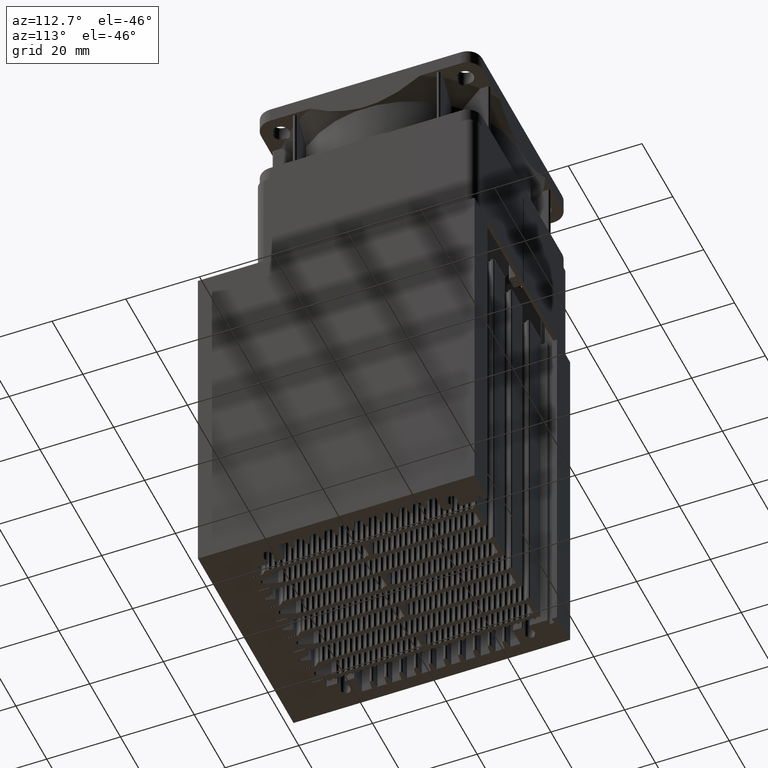
[diagram: clean part render]
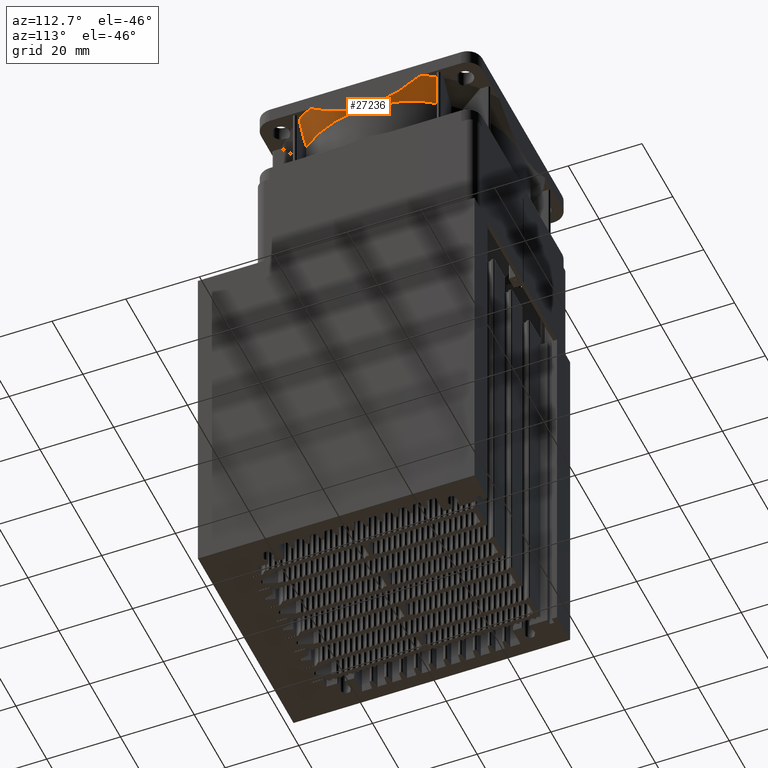
[diagram: same view with one face highlighted and labeled with its STEP entity id]
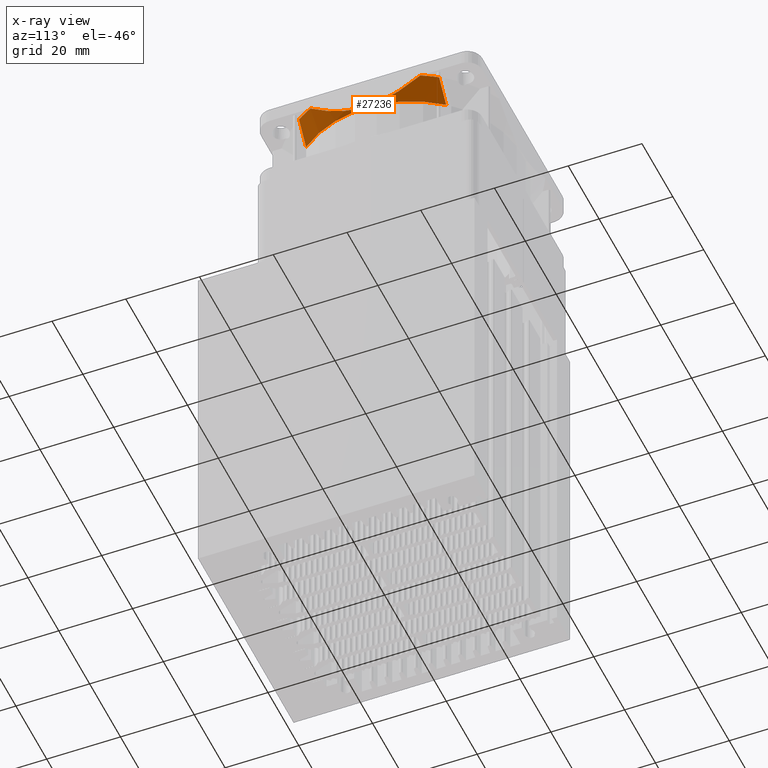
[diagram: x-ray of the same camera — body ghosted, the highlighted face saturated]
A machine part, auxiliary view. The second image highlights one B-rep face of the part: STEP entity #27236.
The next image is the same camera in x-ray: the body ghosted, the highlighted face saturated — about 0% of this face is hidden behind the body in this view.
In plain terms, the highlighted conical surface has half-angle 33.247 deg.
Its self-contained STEP definition (entity closure, byte-faithful):
#46 = AXIS2_PLACEMENT_3D ( 'NONE', #31168, #6347, #18747 ) ;
#404 = CARTESIAN_POINT ( 'NONE',  ( -8.564800977069118915, -29.99989662785769440, 7.512918380959003883 ) ) ;
#870 = CARTESIAN_POINT ( 'NONE',  ( -4.918417837740277854, -29.99989745493872562, 8.730323673533490592 ) ) ;
#1337 = CARTESIAN_POINT ( 'NONE',  ( 9.204814258741539135, -29.99988324425166297, 7.235697295262208506 ) ) ;
#1652 = CARTESIAN_POINT ( 'NONE',  ( 1.153317715235723906, -29.99994358184851251, 9.313601479651454795 ) ) ;
#1715 = CARTESIAN_POINT ( 'NONE',  ( -19.00000000000002487, -23.52047962844004303, 8.981589383368987711 ) ) ;
#2213 = CARTESIAN_POINT ( 'NONE',  ( 19.00000000000002487, -27.07248713575004118, 4.651129312167990193 ) ) ;
#2803 = VERTEX_POINT ( 'NONE', #12599 ) ;
#3247 = EDGE_LOOP ( 'NONE', ( #19982, #30760, #31063, #9241, #24000, #7841 ) ) ;
#3283 = CARTESIAN_POINT ( 'NONE',  ( -7.778583396189745258, -29.99993392385061597, 7.826372006675294202 ) ) ;
#3333 = AXIS2_PLACEMENT_3D ( 'NONE', #31797, #21619, #16949 ) ;
#3456 = CARTESIAN_POINT ( 'NONE',  ( 3.163422437979886315, -29.99997484963807537, 9.085432651792329395 ) ) ;
#3768 = CARTESIAN_POINT ( 'NONE',  ( 6.930034764625582433, -29.99999767178740484, 8.133902611851693720 ) ) ;
#4091 = CARTESIAN_POINT ( 'NONE',  ( 7.632016721739405263, -29.99999884174468789, 7.890527754219365697 ) ) ;
#5578 = DIRECTION ( 'NONE',  ( -0.5671641791044859104, -0.8236047558997791063, 0.000000000000000000 ) ) ;
#5724 = CARTESIAN_POINT ( 'NONE',  ( -10.92918126903728115, -29.99996404696955921, 6.396894381270747054 ) ) ;
#5874 = CARTESIAN_POINT ( 'NONE',  ( -6.398023575660265472, -29.99995899452307668, 8.318266435252386515 ) ) ;
#6048 = CARTESIAN_POINT ( 'NONE',  ( -3.589237491279725578, -29.99997859631443475, 9.012790485282028641 ) ) ;
#6199 = CARTESIAN_POINT ( 'NONE',  ( 10.74829057244935626, -29.99993951142786841, 6.490632042924763923 ) ) ;
#6283 = B_SPLINE_CURVE_WITH_KNOTS ( 'NONE', 3,
 ( #12048, #2213, #24476, #9166, #31576, #24164 ),
 .UNSPECIFIED., .F., .F.,
 ( 4, 1, 1, 4 ),
 ( 0.000000000000000000, 0.3333333333333000081, 0.6666666666667000474, 1.000000000000000000 ),
 .UNSPECIFIED. ) ;
#6347 = DIRECTION ( 'NONE',  ( 0.000000000000000000, 6.726232628759121940E-44, -1.000000000000000000 ) ) ;
#6493 = AXIS2_PLACEMENT_3D ( 'NONE', #28817, #11703, #18969 ) ;
#6518 = CARTESIAN_POINT ( 'NONE',  ( 2.947561968016462863, -29.99997357750909899, 9.119576256582570650 ) ) ;
#7048 = EDGE_CURVE ( 'NONE', #8222, #25754, #19222, .T. ) ;
#7672 = CARTESIAN_POINT ( 'NONE',  ( -11.37624695692780641, -29.99996573951284162, 6.160253652975774763 ) ) ;
#7841 = ORIENTED_EDGE ( 'NONE', *, *, #9451, .T. ) ;
#8222 = VERTEX_POINT ( 'NONE', #18990 ) ;
#8297 = CARTESIAN_POINT ( 'NONE',  ( -7.150459850380689097, -29.99995928542567114, 8.057143001482652167 ) ) ;
#8448 = CARTESIAN_POINT ( 'NONE',  ( 2.731951514338448739, -29.99996595733261628, 9.150193699677362957 ) ) ;
#8537 = CIRCLE ( 'NONE', #6493, 29.85000000000006182 ) ;
#8934 = CARTESIAN_POINT ( 'NONE',  ( 5.519958392805001779, -29.99990542746551725, 8.573036488472581595 ) ) ;
#9097 = CARTESIAN_POINT ( 'NONE',  ( -3.513556855400607581, -29.99998180275061443, 9.026350962606372264 ) ) ;
#9166 = CARTESIAN_POINT ( 'NONE',  ( 19.00000000000002132, -24.52262019595004361, 7.787158448226999319 ) ) ;
#9241 = ORIENTED_EDGE ( 'NONE', *, *, #7048, .T. ) ;
#9415 = EDGE_CURVE ( 'NONE', #25754, #17990, #16312, .T. ) ;
#9451 = EDGE_CURVE ( 'NONE', #17990, #2803, #16836, .T. ) ;
#10049 = CIRCLE ( 'NONE', #3333, 33.50000000000005684 ) ;
#10277 = EDGE_CURVE ( 'NONE', #15213, #8222, #8537, .T. ) ;
#10703 = CARTESIAN_POINT ( 'NONE',  ( -4.623010559539005193, -29.99991120279479873, 8.801090658985282644 ) ) ;
#11005 = CARTESIAN_POINT ( 'NONE',  ( 2.300977321115817098, -29.99995050752941950, 9.206727036939689413 ) ) ;
#11176 = CARTESIAN_POINT ( 'NONE',  ( 10.23230783909899344, -29.99991211032319782, 6.751404707009614370 ) ) ;
#11330 = CARTESIAN_POINT ( 'NONE',  ( 4.632620034932997122, -29.99988276620129568, 8.805285915905683325 ) ) ;
#11485 = CARTESIAN_POINT ( 'NONE',  ( 4.042343660942432138, -29.99993870223817538, 8.934190019543734707 ) ) ;
#11549 = CARTESIAN_POINT ( 'NONE',  ( -19.00000000000003908, -24.52266922173004104, 7.787098550535997532 ) ) ;
#11703 = DIRECTION ( 'NONE',  ( 0.000000000000000000, 6.726232628759121940E-44, -1.000000000000000000 ) ) ;
#12048 = CARTESIAN_POINT ( 'NONE',  ( 19.00000000000002487, -27.59075932264005360, 4.000000000000003553 ) ) ;
#12599 = CARTESIAN_POINT ( 'NONE',  ( 14.90805151588002175, -30.00000000000004974, 4.000000000000003553 ) ) ;
#12647 = CARTESIAN_POINT ( 'NONE',  ( -13.51846978505177610, -29.99996269163331419, 4.916706552205845071 ) ) ;
#13111 = CARTESIAN_POINT ( 'NONE',  ( -7.542949561547593440, -29.99994681686395026, 7.915719438966307919 ) ) ;
#13591 = CARTESIAN_POINT ( 'NONE',  ( 10.76681646391096869, -29.99994041255440536, 6.481093070909586196 ) ) ;
#13762 = CARTESIAN_POINT ( 'NONE',  ( 10.64895426514833332, -29.99993453511908470, 6.541588530433419812 ) ) ;
#13916 = CARTESIAN_POINT ( 'NONE',  ( 6.261028353552687165, -29.99996126310292865, 8.353566450960979495 ) ) ;
#15080 = CARTESIAN_POINT ( 'NONE',  ( -3.736943681009527563, -29.99997085344187298, 8.985493424642543303 ) ) ;
#15213 = VERTEX_POINT ( 'NONE', #18830 ) ;
#15469 = CONICAL_SURFACE ( 'NONE', #46, 31.67500000000005045, 0.5802707988593197586 ) ;
#15539 = CARTESIAN_POINT ( 'NONE',  ( -10.14343674154696728, -29.99994388614488727, 6.802657255324282559 ) ) ;
#15701 = CARTESIAN_POINT ( 'NONE',  ( 6.483719313383418559, -29.99997896925533070, 8.283349946610204739 ) ) ;
#16312 = CIRCLE ( 'NONE', #27153, 33.50000000000004974 ) ;
#16350 = CARTESIAN_POINT ( 'NONE',  ( 10.70855155537263848, -29.99993754368131960, 6.511047078630618934 ) ) ;
#16836 = B_SPLINE_CURVE_WITH_KNOTS ( 'NONE', 3,
 ( #20402, #19936, #12647, #30234, #17973, #7672, #27821, #5724, #17653, #17500, #27504, #15539, #27968, #404, #25386, #3283, #13111, #24916, #8297, #18114, #22970, #5874, #27342, #870, #10703, #20557, #30378, #15080, #6048, #9097, #28134, #30529, #25555, #1652, #31013, #11005, #8448, #6518, #3456, #23131, #21339, #11485, #11330, #8934, #23444, #13916, #15701, #26032, #31182, #3768, #18274, #4091, #18924, #1337, #23764, #11176, #30696, #13762, #16350, #6199, #13591, #21027, #28299, #30860 ),
 .UNSPECIFIED., .F., .F.,
 ( 4, 2, 1, 1, 1, 1, 2, 2, 2, 2, 1, 1, 2, 2, 2, 2, 1, 2, 2, 2, 2, 2, 1, 2, 2, 2, 2, 1, 1, 2, 2, 2, 1, 1, 1, 1, 2, 2, 4 ),
 ( 0.000000000000000000, 0.06250000000000145717, 0.09375000000000216493, 0.1093750000000025813, 0.1171875000000027756, 0.1210937500000028866, 0.1230468750000029421, 0.1250000000000029698, 0.1875000000000023315, 0.2187500000000021372, 0.2343750000000020539, 0.2421875000000019984, 0.2460937500000019984, 0.2500000000000019429, 0.3125000000000017208, 0.3437500000000016653, 0.3593750000000016098, 0.3671875000000015543, 0.3750000000000014988, 0.5000000000000004441, 0.5624999999999998890, 0.5937499999999996669, 0.6093749999999995559, 0.6171874999999995559, 0.6249999999999994449, 0.6874999999999990008, 0.7187499999999988898, 0.7343749999999988898, 0.7421874999999988898, 0.7460937499999988898, 0.7499999999999987788, 0.8124999999999987788, 0.8437499999999985567, 0.8593749999999984457, 0.8671874999999984457, 0.8710937499999985567, 0.8730468749999985567, 0.8749999999999986677, 1.000000000000000000 ),
 .UNSPECIFIED. ) ;
#16949 = DIRECTION ( 'NONE',  ( 0.4450164631606133847, -0.8955223880596278052, 0.000000000000000000 ) ) ;
#17500 = CARTESIAN_POINT ( 'NONE',  ( -10.82283674887922764, -29.99996195861103487, 6.452129249567645886 ) ) ;
#17653 = CARTESIAN_POINT ( 'NONE',  ( -10.86537146387202313, -29.99996286067890594, 6.430071242646169694 ) ) ;
#17973 = CARTESIAN_POINT ( 'NONE',  ( -11.97348912076335203, -29.99995768811160346, 5.832992152137101094 ) ) ;
#17990 = VERTEX_POINT ( 'NONE', #30892 ) ;
#18114 = CARTESIAN_POINT ( 'NONE',  ( -7.071976871568709022, -29.99996030682379455, 8.084754805105641040 ) ) ;
#18274 = CARTESIAN_POINT ( 'NONE',  ( 6.965295519730687168, -29.99999811452707021, 8.121770053668246447 ) ) ;
#18747 = DIRECTION ( 'NONE',  ( -0.7071067811865475727, 0.7071067811865475727, 0.000000000000000000 ) ) ;
#18830 = CARTESIAN_POINT ( 'NONE',  ( 19.00000000000002487, -23.02221753003003002, 9.567796610168988636 ) ) ;
#18924 = CARTESIAN_POINT ( 'NONE',  ( 8.259830233244107589, -29.99991501112335968, 7.645205210262823847 ) ) ;
#18969 = DIRECTION ( 'NONE',  ( 0.6365159128978145064, -0.7712635688452176286, 0.000000000000000000 ) ) ;
#18988 = CARTESIAN_POINT ( 'NONE',  ( -19.00000000000002487, -23.02221753003003002, 9.567796610169986948 ) ) ;
#18990 = CARTESIAN_POINT ( 'NONE',  ( -19.00000000000002487, -23.02221753003003002, 9.567796610169986948 ) ) ;
#19003 = EDGE_CURVE ( 'NONE', #2803, #25840, #10049, .T. ) ;
#19222 = B_SPLINE_CURVE_WITH_KNOTS ( 'NONE', 3,
 ( #18988, #1715, #11549, #28513, #21572, #21404 ),
 .UNSPECIFIED., .F., .F.,
 ( 4, 1, 1, 4 ),
 ( 0.000000000000000000, 0.3333333333333000081, 0.6666666666667000474, 1.000000000000000000 ),
 .UNSPECIFIED. ) ;
#19936 = CARTESIAN_POINT ( 'NONE',  ( -14.21026003062840459, -29.99999999999945999, 4.473687845609204849 ) ) ;
#19982 = ORIENTED_EDGE ( 'NONE', *, *, #19003, .T. ) ;
#20086 = DIRECTION ( 'NONE',  ( 0.000000000000000000, -6.726232628759121940E-44, 1.000000000000000000 ) ) ;
#20402 = CARTESIAN_POINT ( 'NONE',  ( -14.90805151588001642, -30.00000000000004974, 4.000000000000003553 ) ) ;
#20557 = CARTESIAN_POINT ( 'NONE',  ( -4.179976843665055952, -29.99994056970497169, 8.897537418659277719 ) ) ;
#21027 = CARTESIAN_POINT ( 'NONE',  ( 12.14640320296429010, -30.00000573239207924, 5.768877316875984818 ) ) ;
#21168 = FACE_OUTER_BOUND ( 'NONE', #3247, .T. ) ;
#21339 = CARTESIAN_POINT ( 'NONE',  ( 3.377599051348469494, -29.99997154916819753, 9.050037182154532900 ) ) ;
#21404 = CARTESIAN_POINT ( 'NONE',  ( -19.00000000000002487, -27.59075932264005360, 4.000000000000003553 ) ) ;
#21572 = CARTESIAN_POINT ( 'NONE',  ( -19.00000000000002487, -27.07246630925004283, 4.651155477453983167 ) ) ;
#21619 = DIRECTION ( 'NONE',  ( 0.000000000000000000, -6.726232628759121940E-44, 1.000000000000000000 ) ) ;
#22813 = CARTESIAN_POINT ( 'NONE',  ( 0.000000000000000000, 0.000000000000000000, 4.000000000000003553 ) ) ;
#22970 = CARTESIAN_POINT ( 'NONE',  ( -7.030716961862558456, -29.99996053866531298, 8.099151918432850650 ) ) ;
#23131 = CARTESIAN_POINT ( 'NONE',  ( 3.307392154945939744, -29.99997336143207960, 9.061886657110962418 ) ) ;
#23444 = CARTESIAN_POINT ( 'NONE',  ( 5.816057397538361151, -29.99992659174774090, 8.489137800665544020 ) ) ;
#23764 = CARTESIAN_POINT ( 'NONE',  ( 9.678119130549967863, -29.99988520641836587, 7.020562312995450860 ) ) ;
#24000 = ORIENTED_EDGE ( 'NONE', *, *, #9415, .T. ) ;
#24164 = CARTESIAN_POINT ( 'NONE',  ( 19.00000000000002487, -23.02221753003003002, 9.567796610168988636 ) ) ;
#24476 = CARTESIAN_POINT ( 'NONE',  ( 19.00000000000002132, -26.04351147803004096, 5.932073980587010631 ) ) ;
#24916 = CARTESIAN_POINT ( 'NONE',  ( -7.268190601675964757, -29.99995692962346538, 8.015399694977061174 ) ) ;
#25386 = CARTESIAN_POINT ( 'NONE',  ( -8.250108038014884571, -29.99990973736751343, 7.642467524955623759 ) ) ;
#25555 = CARTESIAN_POINT ( 'NONE',  ( 0.5799214913511197000, -30.00000391126295085, 9.338829407443773434 ) ) ;
#25754 = VERTEX_POINT ( 'NONE', #30361 ) ;
#25840 = VERTEX_POINT ( 'NONE', #30848 ) ;
#26032 = CARTESIAN_POINT ( 'NONE',  ( 6.743958627967118424, -29.99999272529031202, 8.197176739911917309 ) ) ;
#26895 = EDGE_CURVE ( 'NONE', #25840, #15213, #6283, .T. ) ;
#27153 = AXIS2_PLACEMENT_3D ( 'NONE', #22813, #20086, #5578 ) ;
#27236 = ADVANCED_FACE ( 'NONE', ( #21168 ), #15469, .T. ) ;
#27342 = CARTESIAN_POINT ( 'NONE',  ( -5.805494085262822956, -29.99989473370894544, 8.498615280170740860 ) ) ;
#27504 = CARTESIAN_POINT ( 'NONE',  ( -10.80021198891074796, -29.99996141570749231, 6.463829910188779948 ) ) ;
#27821 = CARTESIAN_POINT ( 'NONE',  ( -11.07812615661474531, -29.99996575495741880, 6.318852747775662415 ) ) ;
#27968 = CARTESIAN_POINT ( 'NONE',  ( -9.510600282217950507, -29.99989090005642822, 7.103432480418601536 ) ) ;
#28134 = CARTESIAN_POINT ( 'NONE',  ( -2.288654511868938091, -30.00001461851436346, 9.239252477143503839 ) ) ;
#28299 = CARTESIAN_POINT ( 'NONE',  ( 13.51523357568298955, -29.99999999999768008, 4.945498681721284484 ) ) ;
#28513 = CARTESIAN_POINT ( 'NONE',  ( -19.00000000000002487, -26.04346331227004185, 5.932133081488988324 ) ) ;
#28817 = CARTESIAN_POINT ( 'NONE',  ( 0.000000000000000000, 0.000000000000000000, 9.567796610168988636 ) ) ;
#30234 = CARTESIAN_POINT ( 'NONE',  ( -12.48738569164856749, -29.99995338982321869, 5.535230903580128370 ) ) ;
#30361 = CARTESIAN_POINT ( 'NONE',  ( -19.00000000000002487, -27.59075932264005360, 4.000000000000003553 ) ) ;
#30378 = CARTESIAN_POINT ( 'NONE',  ( -3.958479170502213762, -29.99995706539564821, 8.943334868870351784 ) ) ;
#30529 = CARTESIAN_POINT ( 'NONE',  ( -1.144753185499188364, -29.99999217747213720, 9.339288407984559726 ) ) ;
#30696 = CARTESIAN_POINT ( 'NONE',  ( 10.50997150983537232, -29.99992721471003421, 6.612284205681370430 ) ) ;
#30760 = ORIENTED_EDGE ( 'NONE', *, *, #26895, .T. ) ;
#30848 = CARTESIAN_POINT ( 'NONE',  ( 19.00000000000002487, -27.59075932264005360, 4.000000000000003553 ) ) ;
#30860 = CARTESIAN_POINT ( 'NONE',  ( 14.90805151588002175, -30.00000000000004974, 4.000000000000003553 ) ) ;
#30892 = CARTESIAN_POINT ( 'NONE',  ( -14.90805151588001642, -30.00000000000004974, 4.000000000000003553 ) ) ;
#31013 = CARTESIAN_POINT ( 'NONE',  ( 2.013990274118384161, -29.99994096028370549, 9.238147196544892026 ) ) ;
#31063 = ORIENTED_EDGE ( 'NONE', *, *, #10277, .T. ) ;
#31168 = CARTESIAN_POINT ( 'NONE',  ( 0.000000000000000000, 0.000000000000000000, 6.783898305084995251 ) ) ;
#31182 = CARTESIAN_POINT ( 'NONE',  ( 6.855590377304362271, -29.99999610193420096, 8.159333804550707114 ) ) ;
#31576 = CARTESIAN_POINT ( 'NONE',  ( 19.00000000000003197, -23.52045764979003906, 8.981615241326013077 ) ) ;
#31797 = CARTESIAN_POINT ( 'NONE',  ( 0.000000000000000000, 0.000000000000000000, 4.000000000000003553 ) ) ;